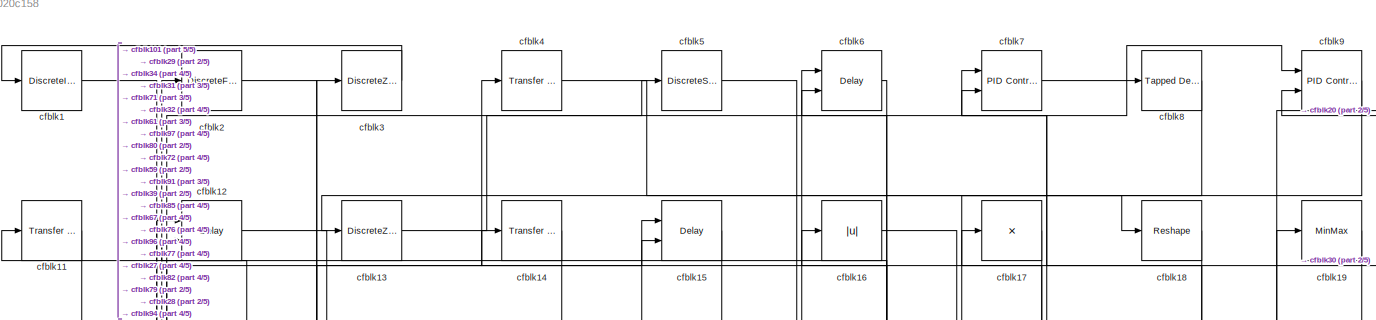
[diagram: root canvas - part 1/5, full width, top band]
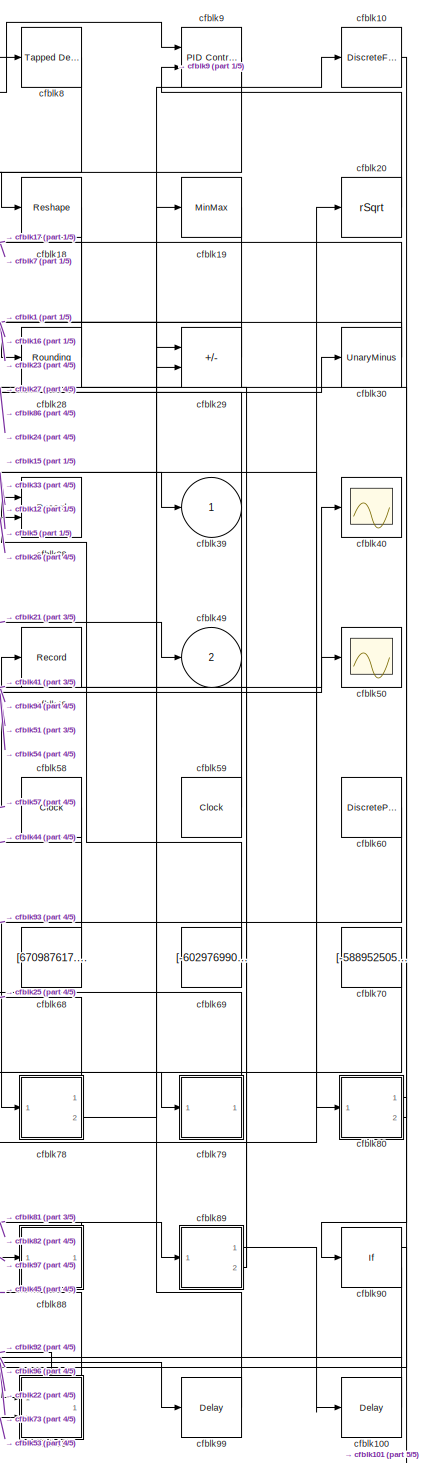
[diagram: root canvas - part 2/5, right side, full height]
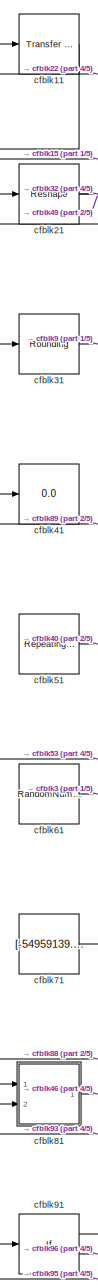
[diagram: root canvas - part 3/5, left side, full height]
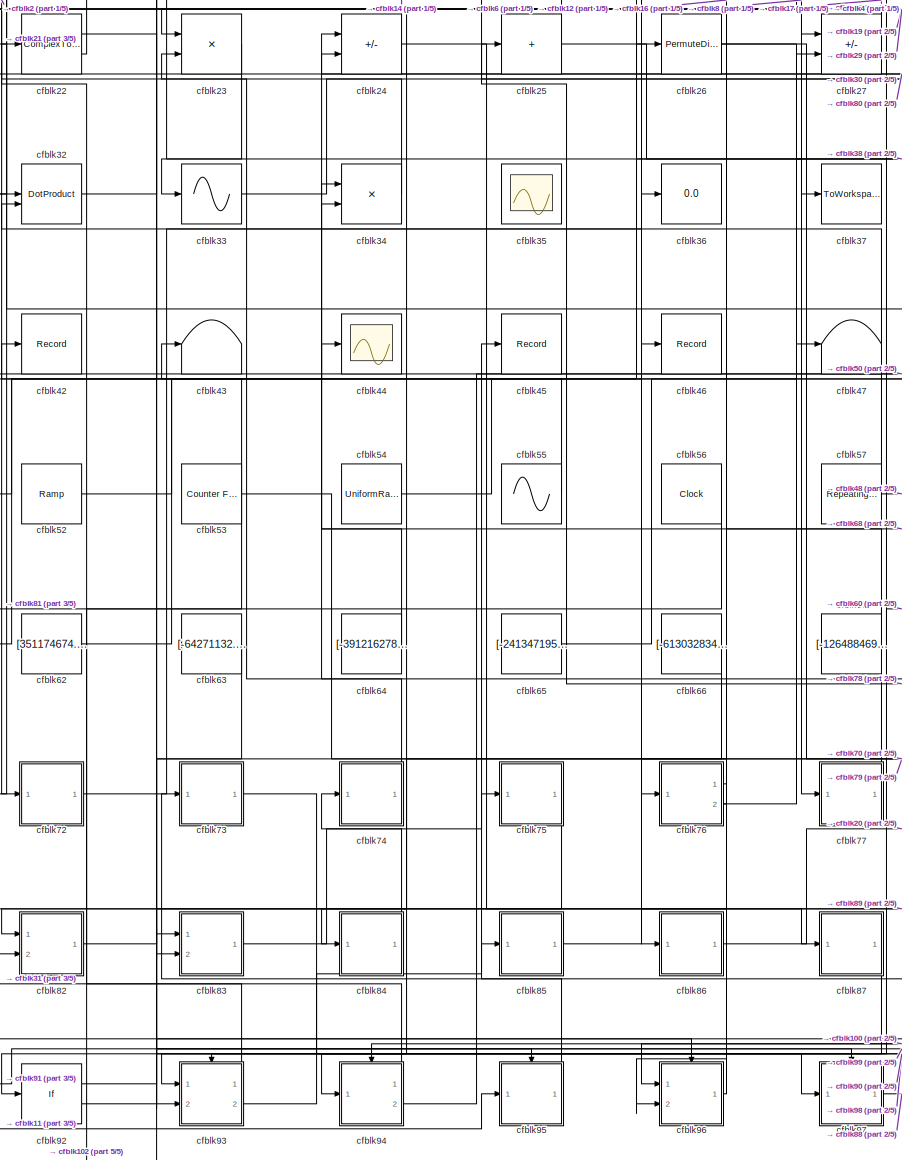
[diagram: root canvas - part 4/5, central region]
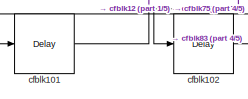
[diagram: root canvas - part 5/5, bottom left region]
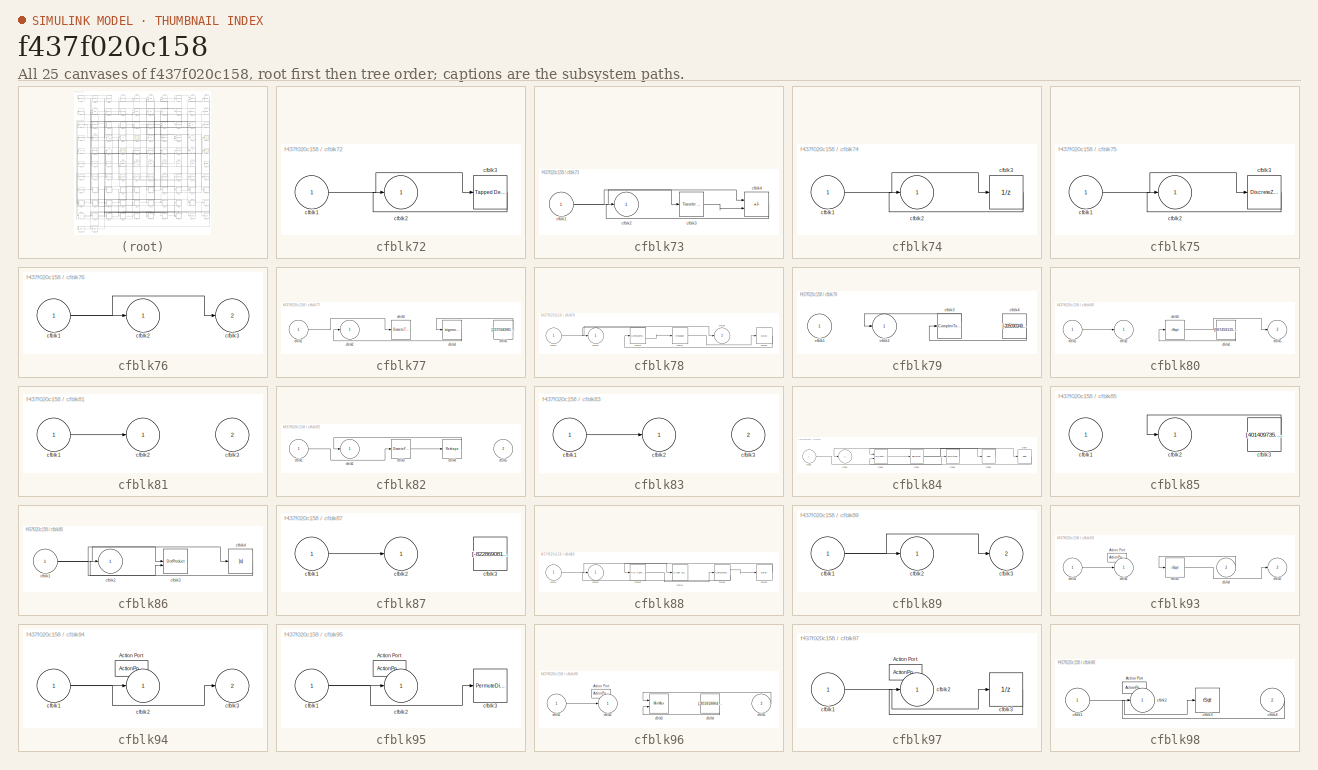
[diagram: thumbnail index - all 25 canvases of the model, root first then tree order]
MODEL slx_f437f020c158
KIND model
CONFIG AbsTol = auto
CONFIG EnableMultiTasking = off
CONFIG FixedStep = auto
CONFIG MaxStep = auto
CONFIG MinStep = auto
CONFIG RelTol = 1e-3
CONFIG SampleTimeConstraint = Unconstrained
CONFIG SolverName = VariableStepAuto
CONFIG StartTime = 0.0
CONFIG StopTime = 10.0
BLOCK [DiscreteIntegrator] cfblk1
  ICPrevOutput = DiscIntNeverNeededParam
  ICPrevScaledInput = DiscIntNeverNeededParam
  InitialConditionSetting = Auto
  Ports = [1, 1]
BLOCK [DiscreteFilter] cfblk10
  InputPortMap = u0
  Ports = [1, 1]
  SampleTime = 1
BLOCK [Delay] cfblk100
  InputPortMap = u0
  Ports = [1, 1]
  SampleTime = 1
BLOCK [Delay] cfblk101
  InputPortMap = u0
  Ports = [1, 1]
  SampleTime = 1
BLOCK [Delay] cfblk102
  InputPortMap = u0
  Ports = [1, 1]
  SampleTime = 1
BLOCK [Reference] cfblk11  REF=simulink/Discrete/Transfer Fcn
Real Zero
  Ports = [1, 1]
  SourceBlock = simulink/Discrete/Transfer Fcn\nReal Zero
  SourceProductBaseCode = SL
  SourceType = Transfer Fcn Real Zero
BLOCK [Delay] cfblk12
  DelayLengthSource = Input port
  InputPortMap = u0,p1
  Ports = [2, 1]
  SampleTime = 1
BLOCK [DiscreteZeroPole] cfblk13
  Gain = 1
  Poles = [0 0.5]
BLOCK [Reference] cfblk14  REF=simulink/Discrete/Transfer Fcn
Lead or Lag
  Ports = [1, 1]
  SourceBlock = simulink/Discrete/Transfer Fcn\nLead or Lag
  SourceProductBaseCode = SL
  SourceType = Lead or Lag Compensator
BLOCK [Delay] cfblk15
  InputPortMap = u0,e6
  Ports = [2, 1]
  SampleTime = 1
  ShowEnablePort = on
BLOCK [Abs] cfblk16
  SaturateOnIntegerOverflow = off
BLOCK [Product] cfblk17
  Inputs = *
  Ports = [1, 1]
BLOCK [Reshape] cfblk18
  Ports = [1, 1]
BLOCK [MinMax] cfblk19
  Ports = [1, 1]
BLOCK [DiscreteFir] cfblk2
  InputPortMap = u0
  OutputPortMap = o0
  Ports = [1, 1]
  SampleTime = 1
BLOCK [Sqrt] cfblk20
  AlgorithmType = Newton-Raphson
  Operator = rSqrt
BLOCK [Reshape] cfblk21
  Ports = [1, 1]
BLOCK [ComplexToMagnitudeAngle] cfblk22
  Ports = [1, 2]
BLOCK [Product] cfblk23
  Inputs = **
  Ports = [2, 1]
BLOCK [Sum] cfblk24
  IconShape = rectangular
  Inputs = +-
  Ports = [2, 1]
BLOCK [Sum] cfblk25
  IconShape = rectangular
  Inputs = +
  Ports = [1, 1]
BLOCK [PermuteDimensions] cfblk26
BLOCK [Sum] cfblk27
  IconShape = rectangular
  Inputs = --
  Ports = [2, 1]
BLOCK [Rounding] cfblk28
BLOCK [Sum] cfblk29
  IconShape = rectangular
  Inputs = +-
  Ports = [2, 1]
BLOCK [DiscreteZeroPole] cfblk3
  Gain = 1
  Poles = [0 0.5]
BLOCK [UnaryMinus] cfblk30
BLOCK [Rounding] cfblk31
BLOCK [DotProduct] cfblk32
  OutDataTypeStr = Inherit: Inherit via internal rule
BLOCK [Sin] cfblk33
  Ports = [1, 1]
  SampleTime = 0
  TimeSource = Use external signal
BLOCK [Product] cfblk34
  Inputs = **
  Ports = [2, 1]
BLOCK [Scope] cfblk35
  Floating = on
  NumInputPorts = 1
  Ports = []
BLOCK [Display] cfblk36
  Decimation = 1
  Ports = [1]
BLOCK [ToWorkspace] cfblk37
  FixptAsFi = on
  MaxDataPoints = inf
  Ports = [1]
  SampleTime = -1
  SaveFormat = Timeseries
  VariableName = bdbdnvh
BLOCK [Record] cfblk38
  CompatibilityTag = XY
  FileSettingsInternal = {"entries":[{"content":{"excelSettings":{"content":{},"type":"Streamout.ExcelSettings"}},"type":"Streamout.FileSettingStorage","uuid":"43110ca6-6102-4ad7-9079-d2e628985e93"}],"packageUris":["http://schema.mathworks.com/mf0/streamout_blocks/R2020a"],"version":"1.0"}
  Layout = [1 1]
  Ports = [2]
  SignalsInternal = {"entries":[{"content":{"signals":[{"content":{"blockPath":["sampleModel266/cfblk38"],"channel":[],"dimensions":[1],"domain":"sampleModel266/cfblk38","lineColor":"#a2142f","plots":[1],"port":1,"sid":[""],"signalID":11072,"signalName":"cfblk69"},"type":"RecordBlkView.Signal","uuid":"a45b7367-80d8-4ae2-abfb-433afa0da222"},{"content":{"blockPath":["sampleModel266/cfblk38"],"channel":[],"dimensions":[...<+387ch>
  VisualizationBindings = {"xyplotplugin":{"info":[{"series":[{"bindingParametersList":[{"parameter":"X-Axis","signalID":11072,"signalName":"cfblk69"},{"parameter":"Y-Axis","signalID":11076,"signalName":"cfblk26"}],"seriesID":24275}],"subplotID":1}]}}
BLOCK [Outport] cfblk39
BLOCK [Reference] cfblk4  REF=simulink/Discrete/Transfer Fcn
Real Zero
  Ports = [1, 1]
  SourceBlock = simulink/Discrete/Transfer Fcn\nReal Zero
  SourceProductBaseCode = SL
  SourceType = Transfer Fcn Real Zero
BLOCK [Scope] cfblk40
  Floating = off
  NumInputPorts = 1
  Ports = [1]
BLOCK [Display] cfblk41
  Decimation = 1
  Ports = [1]
BLOCK [Record] cfblk42
  FileSettingsInternal = {"entries":[{"content":{"excelSettings":{"content":{},"type":"Streamout.ExcelSettings"}},"type":"Streamout.FileSettingStorage","uuid":"b0277c4d-c3f0-488b-850c-bc30e5aee688"}],"packageUris":["http://schema.mathworks.com/mf0/streamout_blocks/R2020a"],"version":"1.0"}
  Ports = [1]
  SignalsInternal = {"entries":[{"content":{"signals":[{"content":{"blockPath":["sampleModel266/cfblk42"],"channel":[],"dimensions":[1],"domain":"sampleModel266/cfblk42","lineColor":"#fe330a","plots":[1],"port":1,"sid":[""],"signalID":11092,"signalName":"cfblk55"},"type":"RecordBlkView.Signal","uuid":"cd0a57a4-37d3-48f1-a2f9-2c0c44900d99"}]},"type":"RecordBlkView.InputSignals","uuid":"d9d312c2-0497-4958-9605-1fbad3e5...<+98ch>
  VisualizationBindings = {"sparklinesplugin":{"info":[{"bindingParametersList":[],"subplotID":1}]}}
BLOCK [Terminator] cfblk43
BLOCK [Scope] cfblk44
  Floating = off
  NumInputPorts = 1
  Ports = [1]
BLOCK [Record] cfblk45
  FileSettingsInternal = {"entries":[{"content":{"excelSettings":{"content":{},"type":"Streamout.ExcelSettings"}},"type":"Streamout.FileSettingStorage","uuid":"b0dcd758-c51e-4590-aef3-e78df695a30b"}],"packageUris":["http://schema.mathworks.com/mf0/streamout_blocks/R2020a"],"version":"1.0"}
  Ports = [1]
  SignalsInternal = {"entries":[{"content":{"signals":[{"content":{"blockPath":["sampleModel266/cfblk45"],"channel":[],"dimensions":[1],"domain":"sampleModel266/cfblk45","lineColor":"#b746ff","plots":[1],"port":1,"sid":[""],"signalID":11080,"signalName":"cfblk98"},"type":"RecordBlkView.Signal","uuid":"5f89b29a-7f56-481c-9c7e-39976266a66c"}]},"type":"RecordBlkView.InputSignals","uuid":"2db78da9-964a-4969-af10-754aeae0...<+98ch>
  VisualizationBindings = {"sparklinesplugin":{"info":[{"bindingParametersList":[],"subplotID":1}]}}
BLOCK [Record] cfblk46
  FileSettingsInternal = {"entries":[{"content":{"excelSettings":{"content":{},"type":"Streamout.ExcelSettings"}},"type":"Streamout.FileSettingStorage","uuid":"8dd51e30-8e02-41c2-8c8e-02749623e91c"}],"packageUris":["http://schema.mathworks.com/mf0/streamout_blocks/R2020a"],"version":"1.0"}
  Ports = [1]
  SignalsInternal = {"entries":[{"content":{"signals":[{"content":{"blockPath":["sampleModel266/cfblk46"],"channel":[],"dimensions":[1],"domain":"sampleModel266/cfblk46","lineColor":"#64d413","plots":[1],"port":1,"sid":[""],"signalID":11084,"signalName":"cfblk81"},"type":"RecordBlkView.Signal","uuid":"c1bea3bc-0e8a-4b9e-90b2-43229a72dfd4"}]},"type":"RecordBlkView.InputSignals","uuid":"88e0d65b-f91e-4f95-82db-f06a8086...<+98ch>
  VisualizationBindings = {"sparklinesplugin":{"info":[{"bindingParametersList":[],"subplotID":1}]}}
BLOCK [Terminator] cfblk47
BLOCK [Record] cfblk48
  FileSettingsInternal = {"entries":[{"content":{"excelSettings":{"content":{},"type":"Streamout.ExcelSettings"}},"type":"Streamout.FileSettingStorage","uuid":"8e20a31e-4406-4906-b720-2ef127f055ea"}],"packageUris":["http://schema.mathworks.com/mf0/streamout_blocks/R2020a"],"version":"1.0"}
  Ports = [1]
  SignalsInternal = {"entries":[{"content":{"signals":[{"content":{"blockPath":["sampleModel266/cfblk48"],"channel":[],"dimensions":[1],"domain":"sampleModel266/cfblk48","lineColor":"#ff13a6","plots":[1],"port":1,"sid":[""],"signalID":11088,"signalName":"cfblk57"},"type":"RecordBlkView.Signal","uuid":"aceaeab4-022a-4af3-9a49-ab4073f242e9"}]},"type":"RecordBlkView.InputSignals","uuid":"d79ea415-6e0e-4a5f-9084-126f013c...<+98ch>
  VisualizationBindings = {"sparklinesplugin":{"info":[{"bindingParametersList":[],"subplotID":1}]}}
BLOCK [Outport] cfblk49
  Port = 2
BLOCK [DiscreteStateSpace] cfblk5
BLOCK [Scope] cfblk50
  Floating = off
  NumInputPorts = 1
  Ports = [1]
BLOCK [Reference] cfblk51  REF=simulink/Sources/Repeating
Sequence
Interpolated
  Ports = [0, 1]
  SourceBlock = simulink/Sources/Repeating\nSequence\nInterpolated
  SourceProductBaseCode = SL
  SourceType = Repeating Sequence Interpolated
BLOCK [Reference] cfblk52  REF=simulink/Sources/Ramp
  Ports = [0, 1]
  SourceBlock = simulink/Sources/Ramp
  SourceProductBaseCode = SL
  SourceType = Ramp
BLOCK [Reference] cfblk53  REF=simulink/Sources/Counter
Free-Running
  Ports = [0, 1]
  SourceBlock = simulink/Sources/Counter\nFree-Running
  SourceProductBaseCode = SL
  SourceType = Counter Free-Running
BLOCK [UniformRandomNumber] cfblk54
  Maximum = [1437725911.471544]
  Minimum = [-500550650.183004]
  SampleTime = 0.1
  Seed = [2497096.000000]
BLOCK [Sin] cfblk55
  Amplitude = [-113810789.165866]
  Bias = [-659210168.568115]
  Ports = [0, 1]
  SampleTime = 0
BLOCK [Clock] cfblk56
BLOCK [Reference] cfblk57  REF=simulink/Sources/Repeating
Sequence
Stair
  Ports = [0, 1]
  SourceBlock = simulink/Sources/Repeating\nSequence\nStair
  SourceProductBaseCode = SL
  SourceType = Repeating Sequence Stair
BLOCK [Clock] cfblk58
BLOCK [Clock] cfblk59
BLOCK [Delay] cfblk6
  DelayLengthSource = Input port
  InputPortMap = u0,p1
  Ports = [2, 1]
  SampleTime = 1
BLOCK [DiscretePulseGenerator] cfblk60
  Amplitude = [757664161.403375]
  Period = [38448409.747396]
  PhaseDelay = [5.000000]
  Ports = [0, 1]
  PulseType = Time based
  PulseWidth = 5
BLOCK [RandomNumber] cfblk61
  Mean = [-1777.788641]
  SampleTime = 0.1
  Seed = [82602747.000000]
  Variance = [38069.910515]
BLOCK [Constant] cfblk62
  SampleTime = 1
  Value = [351174674.307925]
BLOCK [Constant] cfblk63
  SampleTime = 1
  Value = [-64271132.790922]
BLOCK [Constant] cfblk64
  SampleTime = 1
  Value = [-391216278.901480]
BLOCK [Constant] cfblk65
  SampleTime = 1
  Value = [-241347195.821052]
BLOCK [Constant] cfblk66
  SampleTime = 1
  Value = [-613032834.409496]
BLOCK [Constant] cfblk67
  SampleTime = 1
  Value = [-126488469.124117]
BLOCK [Constant] cfblk68
  SampleTime = 1
  Value = [670987617.408708]
BLOCK [Constant] cfblk69
  SampleTime = 1
  Value = [-602976990.654643]
BLOCK [Reference] cfblk7  REF=slpidlib/PID Controller (2DOF)
  Ports = [2, 1]
  SourceBlock = slpidlib/PID Controller (2DOF)
  SourceProductBaseCode = SL
  SourceType = PID 2dof
BLOCK [Constant] cfblk70
  SampleTime = 1
  Value = [-588952505.582745]
BLOCK [Constant] cfblk71
  SampleTime = 1
  Value = [-54959139.554380]
BLOCK [SubSystem] cfblk72
  Ports = [1, 1]
  RequestExecContextInheritance = off
BLOCK [Inport] cfblk72/cfblk1
BLOCK [Outport] cfblk72/cfblk2
BLOCK [Reference] cfblk72/cfblk3  REF=simulink/Discrete/Tapped Delay
  Ports = [1, 1]
  SourceBlock = simulink/Discrete/Tapped Delay
  SourceProductBaseCode = SL
  SourceType = Tapped Delay Line
BLOCK [SubSystem] cfblk73
  Ports = [1, 1]
  RequestExecContextInheritance = off
BLOCK [Inport] cfblk73/cfblk1
BLOCK [Outport] cfblk73/cfblk2
BLOCK [Reference] cfblk73/cfblk3  REF=simulink/Discrete/Transfer Fcn
Lead or Lag
  Ports = [1, 1]
  SourceBlock = simulink/Discrete/Transfer Fcn\nLead or Lag
  SourceProductBaseCode = SL
  SourceType = Lead or Lag Compensator
BLOCK [Sum] cfblk73/cfblk4
  IconShape = rectangular
  Inputs = +-
  Ports = [2, 1]
BLOCK [SubSystem] cfblk74
  Ports = [1, 1]
  RequestExecContextInheritance = off
BLOCK [Inport] cfblk74/cfblk1
BLOCK [Outport] cfblk74/cfblk2
BLOCK [UnitDelay] cfblk74/cfblk3
  HasFrameUpgradeWarning = on
BLOCK [SubSystem] cfblk75
  Ports = [1, 1]
  RequestExecContextInheritance = off
BLOCK [Inport] cfblk75/cfblk1
BLOCK [Outport] cfblk75/cfblk2
BLOCK [DiscreteZeroPole] cfblk75/cfblk3
  Gain = 1
  Poles = [0 0.5]
BLOCK [SubSystem] cfblk76
  Ports = [1, 2]
  RequestExecContextInheritance = off
BLOCK [Inport] cfblk76/cfblk1
BLOCK [Outport] cfblk76/cfblk2
BLOCK [Outport] cfblk76/cfblk3
  Port = 2
BLOCK [SubSystem] cfblk77
  Ports = [1, 1]
  RequestExecContextInheritance = off
BLOCK [Inport] cfblk77/cfblk1
BLOCK [Outport] cfblk77/cfblk2
BLOCK [DiscreteTransferFcn] cfblk77/cfblk3
  InputPortMap = u0
  Ports = [1, 1]
  SampleTime = 1
BLOCK [Trigonometry] cfblk77/cfblk4
  Ports = [1, 1]
BLOCK [Constant] cfblk77/cfblk5
  SampleTime = 1
  Value = [237594980.739556]
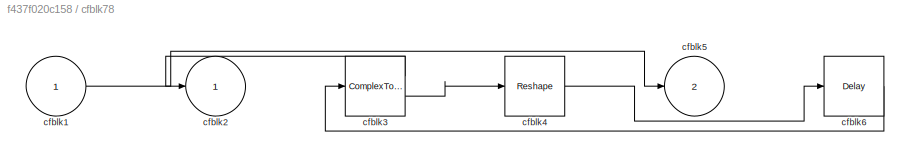
BLOCK [SubSystem] cfblk78
  Ports = [1, 2]
  RequestExecContextInheritance = off
BLOCK [Inport] cfblk78/cfblk1
BLOCK [Outport] cfblk78/cfblk2
BLOCK [ComplexToMagnitudeAngle] cfblk78/cfblk3
  Ports = [1, 2]
BLOCK [Reshape] cfblk78/cfblk4
  Ports = [1, 1]
BLOCK [Outport] cfblk78/cfblk5
  Port = 2
BLOCK [Delay] cfblk78/cfblk6
  InputPortMap = u0
  Ports = [1, 1]
  SampleTime = 1
BLOCK [SubSystem] cfblk79
  Ports = [1, 1]
  RequestExecContextInheritance = off
BLOCK [Inport] cfblk79/cfblk1
BLOCK [Outport] cfblk79/cfblk2
BLOCK [ComplexToMagnitudeAngle] cfblk79/cfblk3
  Ports = [1, 2]
BLOCK [Constant] cfblk79/cfblk4
  SampleTime = 1
  Value = [-305090349.767173]
BLOCK [Reference] cfblk8  REF=simulink/Discrete/Tapped Delay
  Ports = [1, 1]
  SourceBlock = simulink/Discrete/Tapped Delay
  SourceProductBaseCode = SL
  SourceType = Tapped Delay Line
BLOCK [SubSystem] cfblk80
  Ports = [1, 2]
  RequestExecContextInheritance = off
BLOCK [Inport] cfblk80/cfblk1
BLOCK [Outport] cfblk80/cfblk2
BLOCK [Sqrt] cfblk80/cfblk3
  AlgorithmType = Newton-Raphson
  Operator = rSqrt
BLOCK [Constant] cfblk80/cfblk4
  SampleTime = 1
  Value = [867459135.021046]
BLOCK [Outport] cfblk80/cfblk5
  Port = 2
BLOCK [SubSystem] cfblk81
  Ports = [2, 1]
  RequestExecContextInheritance = off
BLOCK [Inport] cfblk81/cfblk1
BLOCK [Outport] cfblk81/cfblk2
BLOCK [Inport] cfblk81/cfblk3
  Port = 2
BLOCK [SubSystem] cfblk82
  Ports = [2, 1]
  RequestExecContextInheritance = off
BLOCK [Inport] cfblk82/cfblk1
BLOCK [Outport] cfblk82/cfblk2
BLOCK [DiscreteFir] cfblk82/cfblk3
  InputPortMap = u0
  OutputPortMap = o0
  Ports = [1, 1]
  SampleTime = 1
BLOCK [Reshape] cfblk82/cfblk4
  Ports = [1, 1]
BLOCK [Inport] cfblk82/cfblk5
  Port = 2
BLOCK [SubSystem] cfblk83
  Ports = [2, 1]
  RequestExecContextInheritance = off
BLOCK [Inport] cfblk83/cfblk1
BLOCK [Outport] cfblk83/cfblk2
BLOCK [Inport] cfblk83/cfblk3
  Port = 2
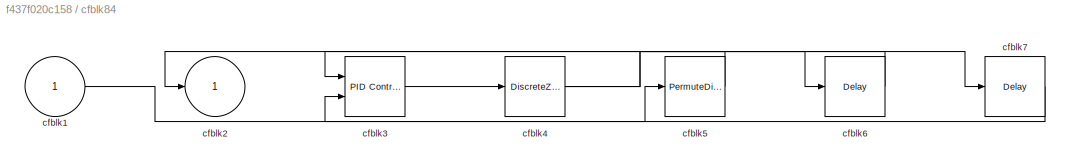
BLOCK [SubSystem] cfblk84
  Ports = [1, 1]
  RequestExecContextInheritance = off
BLOCK [Inport] cfblk84/cfblk1
BLOCK [Outport] cfblk84/cfblk2
BLOCK [Reference] cfblk84/cfblk3  REF=slpidlib/PID Controller (2DOF)
  Ports = [2, 1]
  SourceBlock = slpidlib/PID Controller (2DOF)
  SourceProductBaseCode = SL
  SourceType = PID 2dof
BLOCK [DiscreteZeroPole] cfblk84/cfblk4
  Gain = 1
  Poles = [0 0.5]
BLOCK [PermuteDimensions] cfblk84/cfblk5
BLOCK [Delay] cfblk84/cfblk6
  InputPortMap = u0
  Ports = [1, 1]
  SampleTime = 1
BLOCK [Delay] cfblk84/cfblk7
  InputPortMap = u0
  Ports = [1, 1]
  SampleTime = 1
BLOCK [SubSystem] cfblk85
  Ports = [1, 1]
  RequestExecContextInheritance = off
BLOCK [Inport] cfblk85/cfblk1
BLOCK [Outport] cfblk85/cfblk2
BLOCK [Constant] cfblk85/cfblk3
  SampleTime = 1
  Value = [401409735.856684]
BLOCK [SubSystem] cfblk86
  Ports = [1, 1]
  RequestExecContextInheritance = off
BLOCK [Inport] cfblk86/cfblk1
BLOCK [Outport] cfblk86/cfblk2
BLOCK [DotProduct] cfblk86/cfblk3
  OutDataTypeStr = Inherit: Inherit via internal rule
BLOCK [Abs] cfblk86/cfblk4
  SaturateOnIntegerOverflow = off
BLOCK [SubSystem] cfblk87
  Ports = [1, 1]
  RequestExecContextInheritance = off
BLOCK [Inport] cfblk87/cfblk1
BLOCK [Outport] cfblk87/cfblk2
BLOCK [Constant] cfblk87/cfblk3
  SampleTime = 1
  Value = [-822869081.527535]
BLOCK [SubSystem] cfblk88
  Ports = [1, 1]
  RequestExecContextInheritance = off
BLOCK [Inport] cfblk88/cfblk1
BLOCK [Outport] cfblk88/cfblk2
BLOCK [Reference] cfblk88/cfblk3  REF=slpidlib/PID Controller
  Ports = [1, 1]
  SourceBlock = slpidlib/PID Controller
  SourceProductBaseCode = SL
  SourceType = PID 1dof
BLOCK [Reference] cfblk88/cfblk4  REF=simulink/Math
Operations/Slider
Gain
  Ports = [1, 1]
  SourceBlock = simulink/Math\nOperations/Slider\nGain
  SourceProductBaseCode = SL
  SourceType = Slider Gain
BLOCK [ComplexToRealImag] cfblk88/cfblk5
  Ports = [1, 2]
BLOCK [Delay] cfblk88/cfblk6
  InputPortMap = u0
  Ports = [1, 1]
  SampleTime = 1
BLOCK [SubSystem] cfblk89
  Ports = [1, 2]
  RequestExecContextInheritance = off
BLOCK [Inport] cfblk89/cfblk1
BLOCK [Outport] cfblk89/cfblk2
BLOCK [Outport] cfblk89/cfblk3
  Port = 2
BLOCK [Reference] cfblk9  REF=slpidlib/PID Controller (2DOF)
  Ports = [2, 1]
  SourceBlock = slpidlib/PID Controller (2DOF)
  SourceProductBaseCode = SL
  SourceType = PID 2dof
BLOCK [If] cfblk90
  IfExpression = u1 >= 0
  Ports = [1, 2]
  SampleTime = 1
BLOCK [If] cfblk91
  IfExpression = u1 >= 0
  Ports = [1, 2]
  SampleTime = 1
BLOCK [If] cfblk92
  IfExpression = u1 >= 0
  Ports = [1, 2]
  SampleTime = 1
BLOCK [SubSystem] cfblk93
  Ports = [2, 2, 0, 0, 0, 0, 0, 1]
  RequestExecContextInheritance = off
  TreatAsAtomicUnit = on
BLOCK [ActionPort] cfblk93/Action Port
  ActionPortLabel = if(u1 >= 0)
BLOCK [Inport] cfblk93/cfblk1
BLOCK [Outport] cfblk93/cfblk2
BLOCK [Sqrt] cfblk93/cfblk3
  AlgorithmType = Newton-Raphson
  Operator = rSqrt
BLOCK [Inport] cfblk93/cfblk4
  Port = 2
BLOCK [Outport] cfblk93/cfblk5
  Port = 2
BLOCK [SubSystem] cfblk94
  Ports = [1, 2, 0, 0, 0, 0, 0, 1]
  RequestExecContextInheritance = off
  TreatAsAtomicUnit = on
BLOCK [ActionPort] cfblk94/Action Port
  ActionPortLabel = else
BLOCK [Inport] cfblk94/cfblk1
BLOCK [Outport] cfblk94/cfblk2
BLOCK [Outport] cfblk94/cfblk3
  Port = 2
BLOCK [SubSystem] cfblk95
  Ports = [1, 1, 0, 0, 0, 0, 0, 1]
  RequestExecContextInheritance = off
  TreatAsAtomicUnit = on
BLOCK [ActionPort] cfblk95/Action Port
  ActionPortLabel = if(u1 >= 0)
BLOCK [Inport] cfblk95/cfblk1
BLOCK [Outport] cfblk95/cfblk2
BLOCK [PermuteDimensions] cfblk95/cfblk3
BLOCK [SubSystem] cfblk96
  Ports = [2, 1, 0, 0, 0, 0, 0, 1]
  RequestExecContextInheritance = off
  TreatAsAtomicUnit = on
BLOCK [ActionPort] cfblk96/Action Port
  ActionPortLabel = else
BLOCK [Inport] cfblk96/cfblk1
BLOCK [Outport] cfblk96/cfblk2
BLOCK [MinMax] cfblk96/cfblk3
  Function = max
  Inputs = 2
  Ports = [2, 1]
BLOCK [Constant] cfblk96/cfblk4
  SampleTime = 1
  Value = [-401818864.078444]
BLOCK [Inport] cfblk96/cfblk5
  Port = 2
BLOCK [SubSystem] cfblk97
  Ports = [1, 1, 0, 0, 0, 0, 0, 1]
  RequestExecContextInheritance = off
  TreatAsAtomicUnit = on
BLOCK [ActionPort] cfblk97/Action Port
  ActionPortLabel = if(u1 >= 0)
BLOCK [Inport] cfblk97/cfblk1
BLOCK [Outport] cfblk97/cfblk2
BLOCK [UnitDelay] cfblk97/cfblk3
  HasFrameUpgradeWarning = on
  SampleTime = -1
BLOCK [SubSystem] cfblk98
  Ports = [2, 1, 0, 0, 0, 0, 0, 1]
  RequestExecContextInheritance = off
  TreatAsAtomicUnit = on
BLOCK [ActionPort] cfblk98/Action Port
  ActionPortLabel = else
BLOCK [Inport] cfblk98/cfblk1
BLOCK [Outport] cfblk98/cfblk2
BLOCK [Sqrt] cfblk98/cfblk3
  AlgorithmType = Newton-Raphson
  Operator = rSqrt
BLOCK [Inport] cfblk98/cfblk4
  Port = 2
BLOCK [Delay] cfblk99
  InputPortMap = u0
  Ports = [1, 1]
  SampleTime = 1
LINE cfblk100:1 -> cfblk96:1
LINE cfblk101:1 -> cfblk12:1
LINE cfblk102:1 -> cfblk83:1
LINE cfblk10:1 -> cfblk90:1
LINE cfblk11:1 -> cfblk95:1
LINE cfblk12:1 -> cfblk80:1
LINE cfblk13:1 -> cfblk5:1
LINE cfblk14:1 -> cfblk72:1
LINE cfblk15:1 -> cfblk91:1
LINE cfblk16:1 -> cfblk28:1
LINE cfblk17:1 -> cfblk82:2
LINE cfblk18:1 -> cfblk94:1
LINE cfblk19:1 -> cfblk86:1
LINE cfblk1:1 -> cfblk29:2
LINE cfblk20:1 -> cfblk9:2
NET cfblk21:1 -> cfblk32:1, cfblk49:1
LINE cfblk22:1 -> cfblk99:1
LINE cfblk22:2 -> cfblk11:1
LINE cfblk23:1 -> cfblk33:1
LINE cfblk24:1 -> cfblk87:1
LINE cfblk25:1 -> cfblk37:1
NET cfblk26:1 -> cfblk38:2, cfblk79:1
LINE cfblk27:1 -> cfblk4:1
LINE cfblk28:1 -> cfblk17:1
LINE cfblk29:1 -> cfblk23:1
LINE cfblk2:1 -> cfblk97:1
NET cfblk30:1 -> cfblk27:1, cfblk7:2
LINE cfblk31:1 -> cfblk9:1
LINE cfblk32:1 -> cfblk14:1
LINE cfblk33:1 -> cfblk30:1
LINE cfblk34:1 -> cfblk2:1
LINE cfblk3:1 -> cfblk1:1
LINE cfblk4:1 -> cfblk18:1
LINE cfblk51:1 -> cfblk40:1
LINE cfblk52:1 -> cfblk26:1
NET cfblk53:1 -> cfblk43:1, cfblk81:2, cfblk98:2
LINE cfblk54:1 -> cfblk19:1
LINE cfblk55:1 -> cfblk42:1
LINE cfblk56:1 -> cfblk82:1
NET cfblk57:1 -> cfblk32:2, cfblk48:1
LINE cfblk58:1 -> cfblk78:1
LINE cfblk59:1 -> cfblk15:2
LINE cfblk5:1 -> cfblk39:1
LINE cfblk60:1 -> cfblk93:1
LINE cfblk61:1 -> cfblk3:1
LINE cfblk62:1 -> cfblk34:1
LINE cfblk63:1 -> cfblk83:2
LINE cfblk64:1 -> cfblk34:2
LINE cfblk65:1 -> cfblk27:2
LINE cfblk66:1 -> cfblk84:1
LINE cfblk67:1 -> cfblk6:2
LINE cfblk68:1 -> cfblk44:1
LINE cfblk69:1 -> cfblk38:1
LINE cfblk6:1 -> cfblk76:1
LINE cfblk70:1 -> cfblk93:2
LINE cfblk71:1 -> cfblk15:1
LINE cfblk72/cfblk1:1 -> cfblk72/cfblk3:1
LINE cfblk72/cfblk3:1 -> cfblk72/cfblk2:1
LINE cfblk72:1 -> cfblk36:1
NET cfblk73/cfblk1:1 -> cfblk73/cfblk3:1, cfblk73/cfblk4:1
LINE cfblk73/cfblk3:1 -> cfblk73/cfblk4:2
LINE cfblk73/cfblk4:1 -> cfblk73/cfblk2:1
LINE cfblk73:1 -> cfblk98:1
LINE cfblk74/cfblk1:1 -> cfblk74/cfblk3:1
LINE cfblk74/cfblk3:1 -> cfblk74/cfblk2:1
LINE cfblk74:1 -> cfblk23:2
LINE cfblk75/cfblk1:1 -> cfblk75/cfblk3:1
LINE cfblk75/cfblk3:1 -> cfblk75/cfblk2:1
LINE cfblk75:1 -> cfblk102:1
NET cfblk76/cfblk1:1 -> cfblk76/cfblk2:1, cfblk76/cfblk3:1
LINE cfblk76:1 -> cfblk96:2
NET cfblk76:2 -> cfblk12:2, cfblk47:1
LINE cfblk77/cfblk1:1 -> cfblk77/cfblk3:1
LINE cfblk77/cfblk4:1 -> cfblk77/cfblk2:1
LINE cfblk77/cfblk5:1 -> cfblk77/cfblk4:1
LINE cfblk77:1 -> cfblk24:1
LINE cfblk78/cfblk1:1 -> cfblk78/cfblk5:1
LINE cfblk78/cfblk3:1 -> cfblk78/cfblk2:1
LINE cfblk78/cfblk3:2 -> cfblk78/cfblk4:1
LINE cfblk78/cfblk4:1 -> cfblk78/cfblk6:1
LINE cfblk78/cfblk6:1 -> cfblk78/cfblk3:1
LINE cfblk78:1 -> cfblk25:1
LINE cfblk78:2 -> cfblk10:1
LINE cfblk79/cfblk3:1 -> cfblk79/cfblk2:1
LINE cfblk79/cfblk4:1 -> cfblk79/cfblk3:1
LINE cfblk79:1 -> cfblk7:1
LINE cfblk7:1 -> cfblk8:1
LINE cfblk80/cfblk1:1 -> cfblk80/cfblk2:1
LINE cfblk80/cfblk3:1 -> cfblk80/cfblk5:1
LINE cfblk80/cfblk4:1 -> cfblk80/cfblk3:1
LINE cfblk80:1 -> cfblk101:1
LINE cfblk80:2 -> cfblk24:2
LINE cfblk81/cfblk1:1 -> cfblk81/cfblk2:1
LINE cfblk81:1 -> cfblk46:1
LINE cfblk82/cfblk1:1 -> cfblk82/cfblk3:1
LINE cfblk82/cfblk3:1 -> cfblk82/cfblk4:1
LINE cfblk82/cfblk4:1 -> cfblk82/cfblk2:1
LINE cfblk82:1 -> cfblk89:1
LINE cfblk83/cfblk1:1 -> cfblk83/cfblk2:1
LINE cfblk83:1 -> cfblk75:1
LINE cfblk84/cfblk1:1 -> cfblk84/cfblk5:1
LINE cfblk84/cfblk3:1 -> cfblk84/cfblk4:1
NET cfblk84/cfblk4:1 -> cfblk84/cfblk6:1, cfblk84/cfblk7:1
LINE cfblk84/cfblk5:1 -> cfblk84/cfblk2:1
LINE cfblk84/cfblk6:1 -> cfblk84/cfblk3:1
LINE cfblk84/cfblk7:1 -> cfblk84/cfblk3:2
LINE cfblk84:1 -> cfblk74:1
LINE cfblk85/cfblk3:1 -> cfblk85/cfblk2:1
LINE cfblk85:1 -> cfblk6:1
NET cfblk86/cfblk1:1 -> cfblk86/cfblk3:1, cfblk86/cfblk3:2, cfblk86/cfblk4:1
LINE cfblk86/cfblk4:1 -> cfblk86/cfblk2:1
LINE cfblk86:1 -> cfblk20:1
LINE cfblk87/cfblk1:1 -> cfblk87/cfblk2:1
LINE cfblk87:1 -> cfblk92:1
LINE cfblk88/cfblk1:1 -> cfblk88/cfblk4:1
LINE cfblk88/cfblk3:1 -> cfblk88/cfblk5:1
LINE cfblk88/cfblk5:1 -> cfblk88/cfblk6:1
LINE cfblk88/cfblk5:2 -> cfblk88/cfblk2:1
LINE cfblk88/cfblk6:1 -> cfblk88/cfblk3:1
LINE cfblk88:1 -> cfblk81:1
NET cfblk89/cfblk1:1 -> cfblk89/cfblk2:1, cfblk89/cfblk3:1
LINE cfblk89:1 -> cfblk100:1
NET cfblk89:2 -> cfblk21:1, cfblk41:1
LINE cfblk8:1 -> cfblk77:1
LINE cfblk90:1 -> cfblk93:ifaction
LINE cfblk90:2 -> cfblk94:ifaction
LINE cfblk91:1 -> cfblk95:ifaction
LINE cfblk91:2 -> cfblk96:ifaction
LINE cfblk92:1 -> cfblk97:ifaction
LINE cfblk92:2 -> cfblk98:ifaction
LINE cfblk93/cfblk1:1 -> cfblk93/cfblk2:1
LINE cfblk93/cfblk3:1 -> cfblk93/cfblk5:1
LINE cfblk93/cfblk4:1 -> cfblk93/cfblk3:1
LINE cfblk93:1 -> cfblk31:1
LINE cfblk93:2 -> cfblk85:1
NET cfblk94/cfblk1:1 -> cfblk94/cfblk2:1, cfblk94/cfblk3:1
LINE cfblk94:1 -> cfblk22:1
LINE cfblk94:2 -> cfblk50:1
NET cfblk95/cfblk1:1 -> cfblk95/cfblk2:1, cfblk95/cfblk3:1
LINE cfblk95:1 -> cfblk73:1
LINE cfblk96/cfblk1:1 -> cfblk96/cfblk2:1
LINE cfblk96/cfblk4:1 -> cfblk96/cfblk3:2
LINE cfblk96/cfblk5:1 -> cfblk96/cfblk3:1
LINE cfblk96:1 -> cfblk16:1
LINE cfblk97/cfblk1:1 -> cfblk97/cfblk3:1
LINE cfblk97/cfblk3:1 -> cfblk97/cfblk2:1
LINE cfblk97:1 -> cfblk88:1
LINE cfblk98/cfblk1:1 -> cfblk98/cfblk3:1
LINE cfblk98/cfblk4:1 -> cfblk98/cfblk2:1
LINE cfblk98:1 -> cfblk45:1
LINE cfblk99:1 -> cfblk29:1
LINE cfblk9:1 -> cfblk13:1
note: NET lines group one-source signal fan-out (src -> all destinations, sorted); 1:1 wires keep LINE
